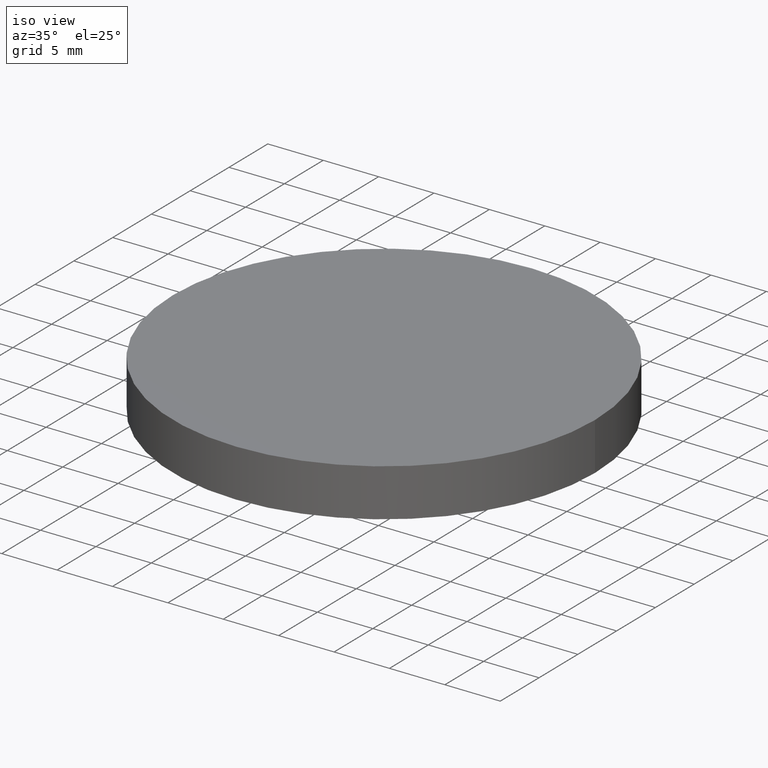
[diagram: clean part render]
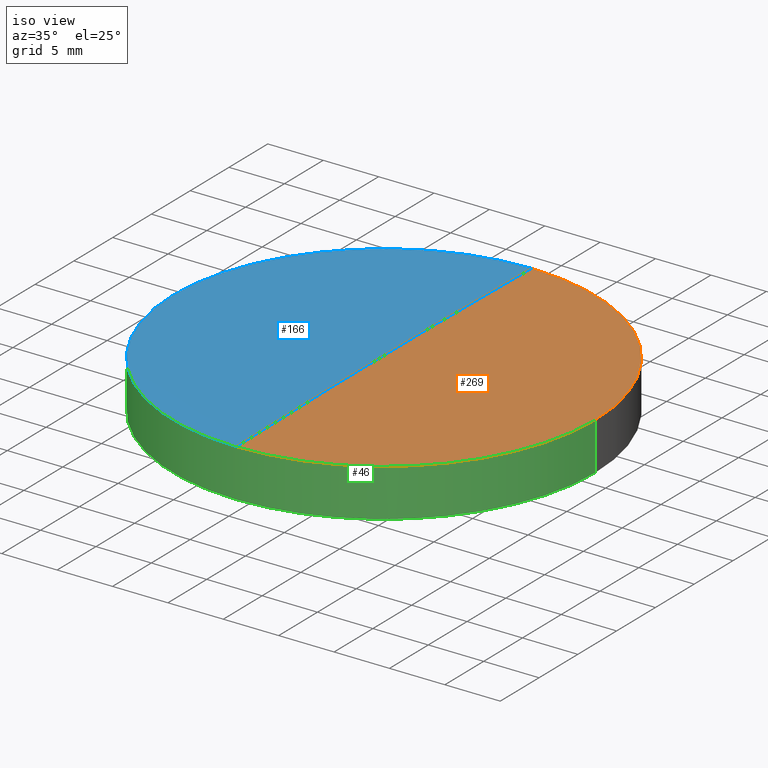
[diagram: same view with three faces highlighted in distinct colors, each labeled with its STEP entity id]
A machine part, iso view with three faces highlighted in distinct colors.
Their STEP definitions:

[orange] entity #269 — the highlighted face is a freeform B-spline surface patch.
#2 = CARTESIAN_POINT ( 'NONE',  ( 12.77782043992600200, -6.427069381475981800, 4.700772131122716000 ) ) ;
#4 = CARTESIAN_POINT ( 'NONE',  ( 3.538835890992686500E-013, 19.27856889239258500, 4.504655571797058200 ) ) ;
#11 = CIRCLE ( 'NONE', #22, 19.05000000000000100 ) ;
#15 = DIRECTION ( 'NONE',  ( 0.0000000000000000000, -1.000000000000000000, 2.333872240120152600E-016 ) ) ;
#22 = AXIS2_PLACEMENT_3D ( 'NONE', #28, #247, #112 ) ;
#24 = CARTESIAN_POINT ( 'NONE',  ( 3.538835890992686500E-013, -19.27856889239245300, 4.504655571797058200 ) ) ;
#26 = DIRECTION ( 'NONE',  ( 1.000000000000000000, 0.0000000000000000000, 0.0000000000000000000 ) ) ;
#28 = CARTESIAN_POINT ( 'NONE',  ( -4.662936703425659800E-015, -8.881784197001250400E-016, 4.509260625652229800 ) ) ;
#32 =( BOUNDED_SURFACE ( )  B_SPLINE_SURFACE ( 3, 3, ( 
 ( #84, #104, #82, #24 ),
 ( #243, #2, #255, #53 ),
 ( #137, #110, #260, #238 ),
 ( #195, #133, #157, #4 ) ),
 .UNSPECIFIED., .F., .F., .F. ) 
 B_SPLINE_SURFACE_WITH_KNOTS ( ( 4, 4 ),
 ( 4, 4 ),
 ( 0.0000000000000000000, 1.000000000000000000 ),
 ( 0.0000000000000000000, 1.000000000000000000 ),
 .UNSPECIFIED. ) 
 GEOMETRIC_REPRESENTATION_ITEM ( )  RATIONAL_B_SPLINE_SURFACE ( (
 ( 1.000000000000000000, 0.9999661831806077000, 0.9999661831806077000, 1.000000000000000000),
 ( 0.9998631179117071200, 0.9998293057212316300, 0.9998293057212316300, 0.9998631179117071200),
 ( 0.9998631179117071200, 0.9998293057212316300, 0.9998293057212316300, 0.9998631179117071200),
 ( 1.000000000000000000, 0.9999661831806077000, 0.9999661831806077000, 1.000000000000000000) ) ) 
 REPRESENTATION_ITEM ( '' )  SURFACE ( )  );
#34 = VERTEX_POINT ( 'NONE', #47 ) ;
#37 = EDGE_CURVE ( 'NONE', #249, #271, #188, .T. ) ;
#47 = CARTESIAN_POINT ( 'NONE',  ( 19.04999999999999700, -8.881784197001250400E-016, 4.509260625652229800 ) ) ;
#53 = CARTESIAN_POINT ( 'NONE',  ( 3.504141421473150300E-013, -6.427069381475981800, 4.765123723672131100 ) ) ;
#59 = ORIENTED_EDGE ( 'NONE', *, *, #102, .F. ) ;
#62 = CARTESIAN_POINT ( 'NONE',  ( 1.212149162115420400E-013, -19.04999999999755300, 4.509260625652248500 ) ) ;
#75 = AXIS2_PLACEMENT_3D ( 'NONE', #150, #85, #26 ) ;
#82 = CARTESIAN_POINT ( 'NONE',  ( 6.387323224292100800, -19.27856889239245000, 4.504655571797053800 ) ) ;
#84 = CARTESIAN_POINT ( 'NONE',  ( 19.16034971357631300, -19.27856889239245300, 4.311660170533637700 ) ) ;
#85 = DIRECTION ( 'NONE',  ( -0.0000000000000000000, -0.0000000000000000000, -1.000000000000000000 ) ) ;
#90 = ORIENTED_EDGE ( 'NONE', *, *, #190, .F. ) ;
#102 = EDGE_CURVE ( 'NONE', #271, #34, #240, .T. ) ;
#104 = CARTESIAN_POINT ( 'NONE',  ( 12.77432245015003400, -19.27856889239245000, 4.440321595805477800 ) ) ;
#106 = EDGE_LOOP ( 'NONE', ( #161, #90, #59 ) ) ;
#110 = CARTESIAN_POINT ( 'NONE',  ( 12.77782043992600200, 6.427069381476113300, 4.700772131122714200 ) ) ;
#112 = DIRECTION ( 'NONE',  ( 1.000000000000000000, 0.0000000000000000000, 0.0000000000000000000 ) ) ;
#124 = DIRECTION ( 'NONE',  ( -1.000000000000000000, 6.034084082518540200E-032, 2.469506591837139800E-016 ) ) ;
#133 = CARTESIAN_POINT ( 'NONE',  ( 12.77432245015003400, 19.27856889239258500, 4.440321595805477800 ) ) ;
#137 = CARTESIAN_POINT ( 'NONE',  ( 19.16559638772781000, 6.427069381476113300, 4.572075474522408800 ) ) ;
#147 = CARTESIAN_POINT ( 'NONE',  ( -1.136868377216160000E-013, 1.136868377216160000E-013, -946.7000000000000500 ) ) ;
#150 = CARTESIAN_POINT ( 'NONE',  ( -4.662936703425659800E-015, -8.881784197001250400E-016, 4.509260625652229800 ) ) ;
#155 = FACE_OUTER_BOUND ( 'NONE', #106, .T. ) ;
#157 = CARTESIAN_POINT ( 'NONE',  ( 6.387323224292100800, 19.27856889239258500, 4.504655571797053800 ) ) ;
#161 = ORIENTED_EDGE ( 'NONE', *, *, #37, .F. ) ;
#188 = CIRCLE ( 'NONE', #235, 951.3999999999999800 ) ;
#190 = EDGE_CURVE ( 'NONE', #34, #249, #11, .T. ) ;
#195 = CARTESIAN_POINT ( 'NONE',  ( 19.16034971357631300, 19.27856889239258500, 4.311660170533637700 ) ) ;
#235 = AXIS2_PLACEMENT_3D ( 'NONE', #147, #124, #15 ) ;
#238 = CARTESIAN_POINT ( 'NONE',  ( 3.504141421473150300E-013, 6.427069381476113300, 4.765123723672129300 ) ) ;
#240 = CIRCLE ( 'NONE', #75, 19.05000000000000100 ) ;
#243 = CARTESIAN_POINT ( 'NONE',  ( 19.16559638772781000, -6.427069381475981800, 4.572075474522410600 ) ) ;
#247 = DIRECTION ( 'NONE',  ( -0.0000000000000000000, -0.0000000000000000000, -1.000000000000000000 ) ) ;
#249 = VERTEX_POINT ( 'NONE', #62 ) ;
#255 = CARTESIAN_POINT ( 'NONE',  ( 6.389072263540292300, -6.427069381475981800, 4.765123723672128400 ) ) ;
#260 = CARTESIAN_POINT ( 'NONE',  ( 6.389072263540292300, 6.427069381476113300, 4.765123723672126700 ) ) ;
#269 = ADVANCED_FACE ( 'NONE', ( #155 ), #32, .T. ) ;
#271 = VERTEX_POINT ( 'NONE', #279 ) ;
#279 = CARTESIAN_POINT ( 'NONE',  ( 1.212149162115420400E-013, 19.04999999999766700, 4.509260625652248500 ) ) ;

[blue] entity #166 — the highlighted face is a freeform B-spline surface patch.
#5 = CARTESIAN_POINT ( 'NONE',  ( -12.77432245014976300, 19.27856889239258500, 4.440321595805533800 ) ) ;
#9 = ORIENTED_EDGE ( 'NONE', *, *, #199, .F. ) ;
#15 = DIRECTION ( 'NONE',  ( 0.0000000000000000000, -1.000000000000000000, 2.333872240120152600E-016 ) ) ;
#27 = FACE_OUTER_BOUND ( 'NONE', #52, .T. ) ;
#37 = EDGE_CURVE ( 'NONE', #249, #271, #188, .T. ) ;
#50 = CARTESIAN_POINT ( 'NONE',  ( -6.389072263539921100, -6.427069381475981800, 4.765123723672209300 ) ) ;
#52 = EDGE_LOOP ( 'NONE', ( #151, #145, #9 ) ) ;
#54 = CARTESIAN_POINT ( 'NONE',  ( -6.389072263539921100, 6.427069381476113300, 4.765123723672208400 ) ) ;
#56 = CARTESIAN_POINT ( 'NONE',  ( 1.212781017722587700E-013, 6.427069381476113300, 4.765123723672205700 ) ) ;
#60 = CARTESIAN_POINT ( 'NONE',  ( 1.212781017722587700E-013, -6.427069381475981800, 4.765123723672206600 ) ) ;
#62 = CARTESIAN_POINT ( 'NONE',  ( 1.212149162115420400E-013, -19.04999999999755300, 4.509260625652248500 ) ) ;
#74 = CARTESIAN_POINT ( 'NONE',  ( -6.387323224291725900, -19.27856889239245000, 4.504655571797134600 ) ) ;
#83 = CARTESIAN_POINT ( 'NONE',  ( -19.16034971357614200, 19.27856889239258500, 4.311660170533693700 ) ) ;
#87 =( BOUNDED_SURFACE ( )  B_SPLINE_SURFACE ( 3, 3, ( 
 ( #261, #74, #253, #215 ),
 ( #60, #50, #210, #138 ),
 ( #56, #54, #232, #280 ),
 ( #214, #101, #5, #83 ) ),
 .UNSPECIFIED., .F., .F., .T. ) 
 B_SPLINE_SURFACE_WITH_KNOTS ( ( 4, 4 ),
 ( 4, 4 ),
 ( 0.0000000000000000000, 1.000000000000000000 ),
 ( 0.0000000000000000000, 1.000000000000000000 ),
 .UNSPECIFIED. ) 
 GEOMETRIC_REPRESENTATION_ITEM ( )  RATIONAL_B_SPLINE_SURFACE ( (
 ( 1.000000000000000000, 0.9999661831806077000, 0.9999661831806077000, 1.000000000000000000),
 ( 0.9998631179117071200, 0.9998293057212316300, 0.9998293057212316300, 0.9998631179117071200),
 ( 0.9998631179117071200, 0.9998293057212316300, 0.9998293057212316300, 0.9998631179117071200),
 ( 1.000000000000000000, 0.9999661831806077000, 0.9999661831806077000, 1.000000000000000000) ) ) 
 REPRESENTATION_ITEM ( '' )  SURFACE ( )  );
#98 = AXIS2_PLACEMENT_3D ( 'NONE', #136, #278, #127 ) ;
#101 = CARTESIAN_POINT ( 'NONE',  ( -6.387323224291725900, 19.27856889239258500, 4.504655571797134600 ) ) ;
#107 = CARTESIAN_POINT ( 'NONE',  ( -19.05000000000000400, 1.444773732675583000E-015, 4.509260625652229800 ) ) ;
#118 = CIRCLE ( 'NONE', #212, 19.05000000000000100 ) ;
#120 = EDGE_CURVE ( 'NONE', #249, #289, #144, .T. ) ;
#124 = DIRECTION ( 'NONE',  ( -1.000000000000000000, 6.034084082518540200E-032, 2.469506591837139800E-016 ) ) ;
#127 = DIRECTION ( 'NONE',  ( 1.000000000000000000, 0.0000000000000000000, 0.0000000000000000000 ) ) ;
#136 = CARTESIAN_POINT ( 'NONE',  ( -4.662936703425659800E-015, -8.881784197001250400E-016, 4.509260625652229800 ) ) ;
#138 = CARTESIAN_POINT ( 'NONE',  ( -19.16559638772763900, -6.427069381475981800, 4.572075474522466500 ) ) ;
#144 = CIRCLE ( 'NONE', #98, 19.05000000000000100 ) ;
#145 = ORIENTED_EDGE ( 'NONE', *, *, #37, .T. ) ;
#147 = CARTESIAN_POINT ( 'NONE',  ( -1.136868377216160000E-013, 1.136868377216160000E-013, -946.7000000000000500 ) ) ;
#151 = ORIENTED_EDGE ( 'NONE', *, *, #120, .F. ) ;
#166 = ADVANCED_FACE ( 'NONE', ( #27 ), #87, .T. ) ;
#184 = DIRECTION ( 'NONE',  ( 1.000000000000000000, 0.0000000000000000000, 0.0000000000000000000 ) ) ;
#188 = CIRCLE ( 'NONE', #235, 951.3999999999999800 ) ;
#198 = DIRECTION ( 'NONE',  ( -0.0000000000000000000, -0.0000000000000000000, -1.000000000000000000 ) ) ;
#199 = EDGE_CURVE ( 'NONE', #289, #271, #118, .T. ) ;
#201 = CARTESIAN_POINT ( 'NONE',  ( -4.662936703425659800E-015, -8.881784197001250400E-016, 4.509260625652229800 ) ) ;
#210 = CARTESIAN_POINT ( 'NONE',  ( -12.77782043992573500, -6.427069381475981800, 4.700772131122772800 ) ) ;
#212 = AXIS2_PLACEMENT_3D ( 'NONE', #201, #198, #184 ) ;
#214 = CARTESIAN_POINT ( 'NONE',  ( 1.212137789904569300E-013, 19.27856889239258500, 4.504655571797133700 ) ) ;
#215 = CARTESIAN_POINT ( 'NONE',  ( -19.16034971357614200, -19.27856889239245300, 4.311660170533693700 ) ) ;
#232 = CARTESIAN_POINT ( 'NONE',  ( -12.77782043992573500, 6.427069381476113300, 4.700772131122771900 ) ) ;
#235 = AXIS2_PLACEMENT_3D ( 'NONE', #147, #124, #15 ) ;
#249 = VERTEX_POINT ( 'NONE', #62 ) ;
#253 = CARTESIAN_POINT ( 'NONE',  ( -12.77432245014976300, -19.27856889239245000, 4.440321595805533800 ) ) ;
#261 = CARTESIAN_POINT ( 'NONE',  ( 1.212137789904569300E-013, -19.27856889239245300, 4.504655571797133700 ) ) ;
#271 = VERTEX_POINT ( 'NONE', #279 ) ;
#278 = DIRECTION ( 'NONE',  ( -0.0000000000000000000, -0.0000000000000000000, -1.000000000000000000 ) ) ;
#279 = CARTESIAN_POINT ( 'NONE',  ( 1.212149162115420400E-013, 19.04999999999766700, 4.509260625652248500 ) ) ;
#280 = CARTESIAN_POINT ( 'NONE',  ( -19.16559638772763900, 6.427069381476113300, 4.572075474522465700 ) ) ;
#289 = VERTEX_POINT ( 'NONE', #107 ) ;

[green] entity #46 — the highlighted cylindrical surface (partial cylindrical patch) has radius 19.05 mm, axis along (0, 0, 1).
#11 = CIRCLE ( 'NONE', #22, 19.05000000000000100 ) ;
#12 = CARTESIAN_POINT ( 'NONE',  ( 19.04999999999999700, -8.881784197001250400E-016, 0.1907393743477660000 ) ) ;
#16 = CARTESIAN_POINT ( 'NONE',  ( -4.662936703425659800E-015, -8.881784197001250400E-016, 0.1907393743477660000 ) ) ;
#17 = EDGE_CURVE ( 'NONE', #291, #289, #178, .T. ) ;
#19 = VERTEX_POINT ( 'NONE', #228 ) ;
#22 = AXIS2_PLACEMENT_3D ( 'NONE', #28, #247, #112 ) ;
#28 = CARTESIAN_POINT ( 'NONE',  ( -4.662936703425659800E-015, -8.881784197001250400E-016, 4.509260625652229800 ) ) ;
#34 = VERTEX_POINT ( 'NONE', #47 ) ;
#43 = AXIS2_PLACEMENT_3D ( 'NONE', #220, #140, #88 ) ;
#45 = CARTESIAN_POINT ( 'NONE',  ( 19.04999999999999700, -8.881784197001250400E-016, 0.1907393743477660000 ) ) ;
#46 = ADVANCED_FACE ( 'NONE', ( #230 ), #236, .T. ) ;
#47 = CARTESIAN_POINT ( 'NONE',  ( 19.04999999999999700, -8.881784197001250400E-016, 4.509260625652229800 ) ) ;
#55 = CARTESIAN_POINT ( 'NONE',  ( -4.662936703425659800E-015, -8.881784197001250400E-016, 0.1907393743477660000 ) ) ;
#62 = CARTESIAN_POINT ( 'NONE',  ( 1.212149162115420400E-013, -19.04999999999755300, 4.509260625652248500 ) ) ;
#66 = AXIS2_PLACEMENT_3D ( 'NONE', #55, #234, #103 ) ;
#69 = EDGE_CURVE ( 'NONE', #119, #34, #226, .T. ) ;
#72 = DIRECTION ( 'NONE',  ( 0.0000000000000000000, 0.0000000000000000000, 1.000000000000000000 ) ) ;
#76 = ORIENTED_EDGE ( 'NONE', *, *, #216, .F. ) ;
#78 = AXIS2_PLACEMENT_3D ( 'NONE', #16, #97, #123 ) ;
#81 = VECTOR ( 'NONE', #72, 1000.000000000000000 ) ;
#88 = DIRECTION ( 'NONE',  ( 1.000000000000000000, 0.0000000000000000000, 0.0000000000000000000 ) ) ;
#97 = DIRECTION ( 'NONE',  ( 0.0000000000000000000, 0.0000000000000000000, 1.000000000000000000 ) ) ;
#98 = AXIS2_PLACEMENT_3D ( 'NONE', #136, #278, #127 ) ;
#103 = DIRECTION ( 'NONE',  ( 1.000000000000000000, 0.0000000000000000000, 0.0000000000000000000 ) ) ;
#107 = CARTESIAN_POINT ( 'NONE',  ( -19.05000000000000400, 1.444773732675583000E-015, 4.509260625652229800 ) ) ;
#112 = DIRECTION ( 'NONE',  ( 1.000000000000000000, 0.0000000000000000000, 0.0000000000000000000 ) ) ;
#119 = VERTEX_POINT ( 'NONE', #12 ) ;
#120 = EDGE_CURVE ( 'NONE', #249, #289, #144, .T. ) ;
#123 = DIRECTION ( 'NONE',  ( 1.000000000000000000, 0.0000000000000000000, 0.0000000000000000000 ) ) ;
#127 = DIRECTION ( 'NONE',  ( 1.000000000000000000, 0.0000000000000000000, 0.0000000000000000000 ) ) ;
#128 = ORIENTED_EDGE ( 'NONE', *, *, #120, .T. ) ;
#136 = CARTESIAN_POINT ( 'NONE',  ( -4.662936703425659800E-015, -8.881784197001250400E-016, 4.509260625652229800 ) ) ;
#140 = DIRECTION ( 'NONE',  ( -0.0000000000000000000, -0.0000000000000000000, -1.000000000000000000 ) ) ;
#144 = CIRCLE ( 'NONE', #98, 19.05000000000000100 ) ;
#146 = ORIENTED_EDGE ( 'NONE', *, *, #17, .F. ) ;
#168 = DIRECTION ( 'NONE',  ( 0.0000000000000000000, 0.0000000000000000000, 1.000000000000000000 ) ) ;
#178 = LINE ( 'NONE', #250, #277 ) ;
#180 = CARTESIAN_POINT ( 'NONE',  ( -19.05000000000000400, 1.444773732675583000E-015, 0.1907393743477660000 ) ) ;
#190 = EDGE_CURVE ( 'NONE', #34, #249, #11, .T. ) ;
#200 = ORIENTED_EDGE ( 'NONE', *, *, #190, .T. ) ;
#216 = EDGE_CURVE ( 'NONE', #19, #291, #257, .T. ) ;
#220 = CARTESIAN_POINT ( 'NONE',  ( -4.662936703425659800E-015, -8.881784197001250400E-016, 0.1907393743477660000 ) ) ;
#226 = LINE ( 'NONE', #45, #81 ) ;
#228 = CARTESIAN_POINT ( 'NONE',  ( -1.212149162115420200E-013, -19.05000000000046300, 0.1907393743477681600 ) ) ;
#230 = FACE_OUTER_BOUND ( 'NONE', #233, .T. ) ;
#233 = EDGE_LOOP ( 'NONE', ( #146, #76, #295, #286, #200, #128 ) ) ;
#234 = DIRECTION ( 'NONE',  ( -0.0000000000000000000, -0.0000000000000000000, -1.000000000000000000 ) ) ;
#236 = CYLINDRICAL_SURFACE ( 'NONE', #78, 19.05000000000000100 ) ;
#247 = DIRECTION ( 'NONE',  ( -0.0000000000000000000, -0.0000000000000000000, -1.000000000000000000 ) ) ;
#249 = VERTEX_POINT ( 'NONE', #62 ) ;
#250 = CARTESIAN_POINT ( 'NONE',  ( -19.05000000000000400, 1.444773732675583000E-015, 0.1907393743477660000 ) ) ;
#257 = CIRCLE ( 'NONE', #43, 19.05000000000000100 ) ;
#270 = CIRCLE ( 'NONE', #66, 19.05000000000000100 ) ;
#275 = EDGE_CURVE ( 'NONE', #119, #19, #270, .T. ) ;
#277 = VECTOR ( 'NONE', #168, 1000.000000000000000 ) ;
#278 = DIRECTION ( 'NONE',  ( -0.0000000000000000000, -0.0000000000000000000, -1.000000000000000000 ) ) ;
#286 = ORIENTED_EDGE ( 'NONE', *, *, #69, .T. ) ;
#289 = VERTEX_POINT ( 'NONE', #107 ) ;
#291 = VERTEX_POINT ( 'NONE', #180 ) ;
#295 = ORIENTED_EDGE ( 'NONE', *, *, #275, .F. ) ;